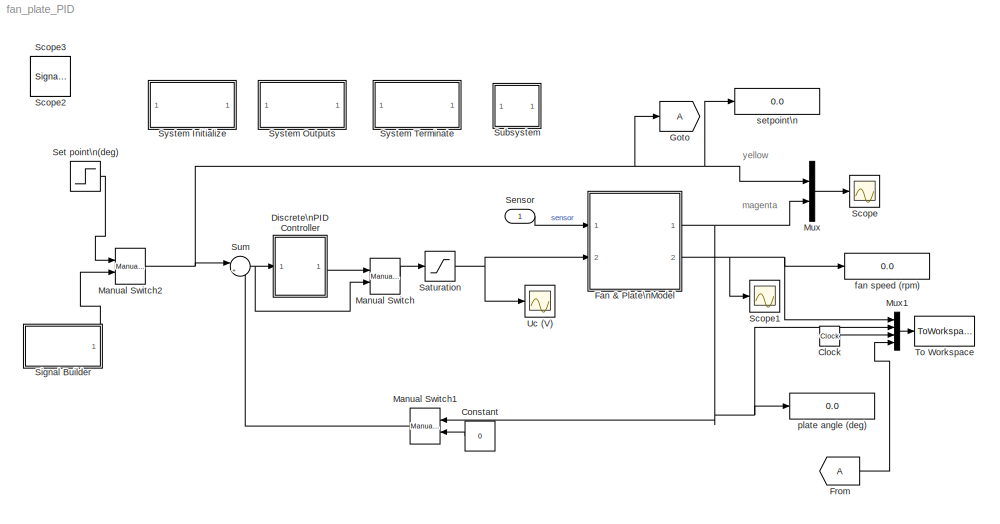
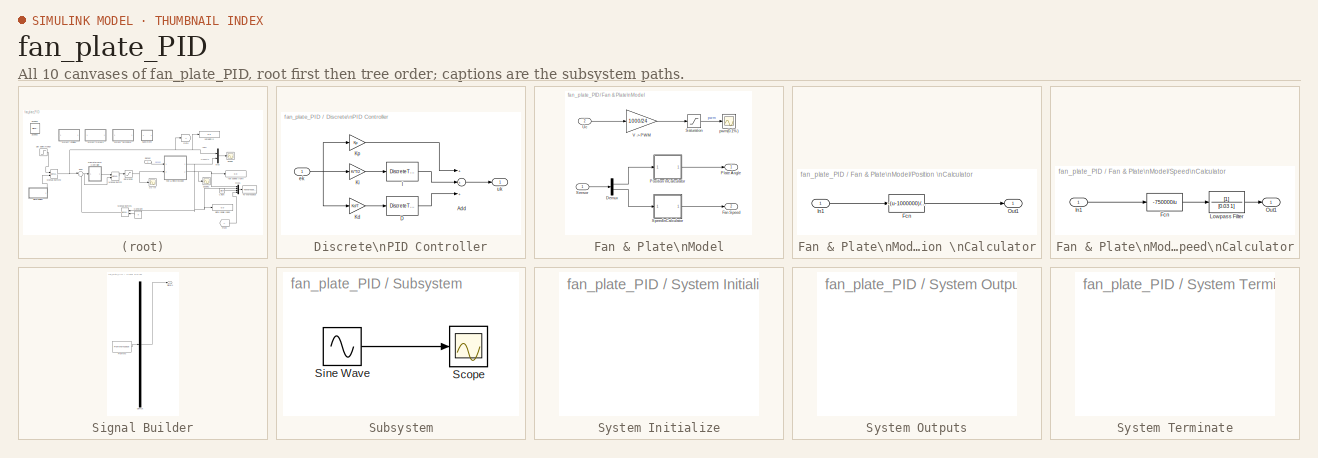
[diagram: thumbnail index - all 10 canvases of the model, root first then tree order]
MODEL fan_plate_PID
KIND model
BLOCK [Clock] Clock
  Decimation = 10
  SID = 2
BLOCK [Constant] Constant
  OutDataType = sfix(16)
  OutScaling = 2^0
  SID = 3
  Value = 0
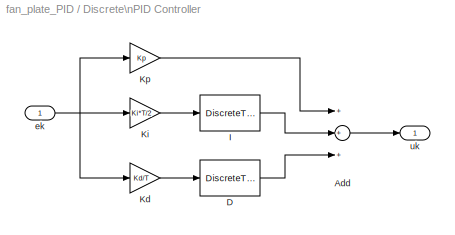
BLOCK [SubSystem] Discrete\nPID Controller
  FunctionWithSeparateData = off
  MaskCallbackString = |||
  MaskEnableString = on,on,on,on
  MaskHideContents = off
  MaskIconFrame = on
  MaskIconOpaque = on
  MaskIconRotate = none
  MaskIconUnits = autoscale
  MaskPortRotate = default
  MaskPromptString = Kp|Ki|Kd|T
  MaskStyleString = edit,edit,edit,edit
  MaskToolTipString = on,on,on,on
  MaskTunableValueString = on,on,on,on
  MaskValueString = 0.9|2.57|0.078|0.001
  MaskVariables = Kp=@1;Ki=@2;Kd=@3;T=@4;
  MaskVisibilityString = on,on,on,on
  MinAlgLoopOccurrences = off
  Opaque = off
  Ports = [1, 1]
  PropExecContextOutsideSubsystem = off
  RTWSystemCode = Auto
  RequestExecContextInheritance = off
  SID = 4
BLOCK [Sum] Discrete\nPID Controller/Add
  InputSameDT = off
  Inputs = +++
  OutDataType = sfix(16)
  OutDataTypeMode = Inherit via internal rule
  OutDataTypeStr = Inherit: Inherit via internal rule
  OutScaling = 2^-10
  Ports = [3, 1]
  SID = 6
  SaturateOnIntegerOverflow = off
BLOCK [DiscreteTransferFcn] Discrete\nPID Controller/D
  Denominator = [1 0]
  Numerator = [1 -1]
  Ports = [1, 1]
  SID = 7
  SampleTime = T
BLOCK [DiscreteTransferFcn] Discrete\nPID Controller/I
  Denominator = [1 -1]
  Numerator = [1 1]
  Ports = [1, 1]
  SID = 8
  SampleTime = T
BLOCK [Gain] Discrete\nPID Controller/Kd
  Gain = Kd/T
  OutDataType = sfix(16)
  OutDataTypeMode = Inherit via internal rule
  OutDataTypeStr = Inherit: Inherit via internal rule
  OutScaling = 2^0
  ParamDataTypeStr = Inherit: Inherit via internal rule
  ParameterDataType = sfix(16)
  ParameterDataTypeMode = Inherit via internal rule
  ParameterScaling = 2^0
  SID = 9
  SaturateOnIntegerOverflow = off
BLOCK [Gain] Discrete\nPID Controller/Ki
  Gain = Ki*T/2
  OutDataType = sfix(16)
  OutDataTypeMode = Inherit via internal rule
  OutDataTypeStr = Inherit: Inherit via internal rule
  OutScaling = 2^0
  ParamDataTypeStr = Inherit: Inherit via internal rule
  ParameterDataType = sfix(16)
  ParameterDataTypeMode = Inherit via internal rule
  ParameterScaling = 2^0
  SID = 10
  SaturateOnIntegerOverflow = off
BLOCK [Gain] Discrete\nPID Controller/Kp
  Gain = Kp
  OutDataType = sfix(16)
  OutDataTypeMode = Inherit via internal rule
  OutDataTypeStr = Inherit: Inherit via internal rule
  OutScaling = 2^0
  ParamDataTypeStr = Inherit: Inherit via internal rule
  ParameterDataType = sfix(16)
  ParameterDataTypeMode = Inherit via internal rule
  ParameterScaling = 2^0
  SID = 11
  SaturateOnIntegerOverflow = off
BLOCK [Inport] Discrete\nPID Controller/ek
  IconDisplay = Port number
  OutDataType = sfix(16)
  OutScaling = 2^0
  SID = 5
BLOCK [Outport] Discrete\nPID Controller/uk
  IconDisplay = Port number
  OutDataType = sfix(16)
  OutScaling = 2^0
  SID = 12
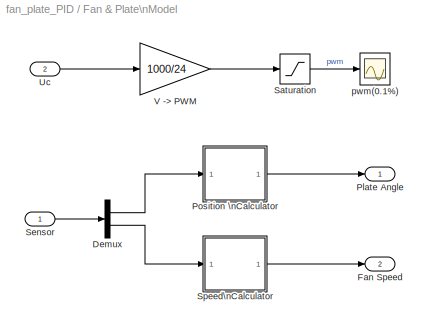
BLOCK [SubSystem] Fan & Plate\nModel
  FunctionWithSeparateData = off
  MaskHideContents = off
  MinAlgLoopOccurrences = off
  Opaque = off
  Ports = [2, 2]
  PropExecContextOutsideSubsystem = off
  RTWSystemCode = Auto
  RequestExecContextInheritance = off
  SID = 13
BLOCK [Demux] Fan & Plate\nModel/Demux
  DisplayOption = bar
  Outputs = 2
  Ports = [1, 2]
  SID = 16
BLOCK [Outport] Fan & Plate\nModel/Fan Speed
  IconDisplay = Port number
  OutDataType = sfix(16)
  OutScaling = 2^0
  Port = 2
  SID = 30
BLOCK [Outport] Fan & Plate\nModel/Plate Angle
  IconDisplay = Port number
  OutDataType = sfix(16)
  OutScaling = 2^0
  SID = 29
BLOCK [SubSystem] Fan & Plate\nModel/Position \nCalculator
  FunctionWithSeparateData = off
  MaskHideContents = off
  MinAlgLoopOccurrences = off
  Opaque = off
  Ports = [1, 1]
  PropExecContextOutsideSubsystem = off
  RTWSystemCode = Auto
  RequestExecContextInheritance = off
  SID = 17
BLOCK [Fcn] Fan & Plate\nModel/Position \nCalculator/Fcn
  Expr = -(u-1000000)/10000*360
  SID = 19
BLOCK [Inport] Fan & Plate\nModel/Position \nCalculator/In1
  IconDisplay = Port number
  OutDataType = sfix(16)
  OutScaling = 2^0
  SID = 18
BLOCK [Outport] Fan & Plate\nModel/Position \nCalculator/Out1
  IconDisplay = Port number
  OutDataType = sfix(16)
  OutScaling = 2^0
  SID = 20
BLOCK [Saturate] Fan & Plate\nModel/Saturation
  LowerLimit = 0
  SID = 21
  UpperLimit = 800
BLOCK [Inport] Fan & Plate\nModel/Sensor
  IconDisplay = Port number
  OutDataType = sfix(16)
  OutScaling = 2^0
  PortDimensions = 2
  SID = 14
BLOCK [SubSystem] Fan & Plate\nModel/Speed\nCalculator
  FunctionWithSeparateData = off
  MaskHideContents = off
  MinAlgLoopOccurrences = off
  Opaque = off
  Ports = [1, 1]
  PropExecContextOutsideSubsystem = off
  RTWSystemCode = Auto
  RequestExecContextInheritance = off
  SID = 22
BLOCK [Fcn] Fan & Plate\nModel/Speed\nCalculator/Fcn
  Expr = -750000/u
  SID = 24
BLOCK [Inport] Fan & Plate\nModel/Speed\nCalculator/In1
  IconDisplay = Port number
  OutDataType = sfix(16)
  OutScaling = 2^0
  SID = 23
BLOCK [TransferFcn] Fan & Plate\nModel/Speed\nCalculator/Lowpass Filter
  Denominator = [0.03 1]
  SID = 25
BLOCK [Outport] Fan & Plate\nModel/Speed\nCalculator/Out1
  IconDisplay = Port number
  OutDataType = sfix(16)
  OutScaling = 2^0
  SID = 26
BLOCK [Inport] Fan & Plate\nModel/Uc
  IconDisplay = Port number
  OutDataType = sfix(16)
  OutScaling = 2^0
  Port = 2
  PortDimensions = 1
  SID = 15
BLOCK [Gain] Fan & Plate\nModel/V -> PWM
  Gain = 1000/24
  OutDataType = sfix(16)
  OutDataTypeMode = Inherit via internal rule
  OutDataTypeStr = Inherit: Inherit via internal rule
  OutScaling = 2^0
  ParameterDataType = sfix(16)
  ParameterScaling = 2^0
  SID = 27
  SaturateOnIntegerOverflow = off
BLOCK [Scope] Fan & Plate\nModel/pwm(0.1%)
  DataFormat = Array
  Floating = off
  LimitDataPoints = off
  NumInputPorts = 1
  Ports = [1]
  SID = 28
  SampleTime = 0
  SaveName = ScopeData3
  SaveToWorkspace = on
  YMax = 1100
  YMin = -1100
BLOCK [From] From
  CloseFcn = tagdialog Close
  GotoTag = A
  SID = 31
BLOCK [Goto] Goto
  GotoTag = A
  SID = 32
  TagVisibility = local
BLOCK [Reference] Manual Switch  REF=simulink/Signal\nRouting/Manual Switch
  FunctionWithSeparateData = off
  Ports = [2, 1]
  RTWMemSecDataConstants = Inherit from model
  RTWMemSecDataInternal = Inherit from model
  RTWMemSecDataParameters = Inherit from model
  RTWMemSecFuncExecute = Inherit from model
  RTWMemSecFuncInitTerm = Inherit from model
  SID = 33
  ShowPortLabels = FromPortIcon
  SourceBlock = simulink/Signal\nRouting/Manual Switch
  SourceType = Manual Switch
  SystemSampleTime = -1
  action = 0
  sw = 1
  varsize = off
BLOCK [Reference] Manual Switch1  REF=simulink/Signal\nRouting/Manual Switch
  FunctionWithSeparateData = off
  Ports = [2, 1]
  RTWMemSecDataConstants = Inherit from model
  RTWMemSecDataInternal = Inherit from model
  RTWMemSecDataParameters = Inherit from model
  RTWMemSecFuncExecute = Inherit from model
  RTWMemSecFuncInitTerm = Inherit from model
  SID = 34
  ShowPortLabels = FromPortIcon
  SourceBlock = simulink/Signal\nRouting/Manual Switch
  SourceType = Manual Switch
  SystemSampleTime = -1
  action = 0
  sw = 1
  varsize = off
BLOCK [Reference] Manual Switch2  REF=simulink/Signal\nRouting/Manual Switch
  FunctionWithSeparateData = off
  Ports = [2, 1]
  RTWMemSecDataConstants = Inherit from model
  RTWMemSecDataInternal = Inherit from model
  RTWMemSecDataParameters = Inherit from model
  RTWMemSecFuncExecute = Inherit from model
  RTWMemSecFuncInitTerm = Inherit from model
  SID = 35
  ShowPortLabels = FromPortIcon
  SourceBlock = simulink/Signal\nRouting/Manual Switch
  SourceType = Manual Switch
  SystemSampleTime = -1
  action = 0
  sw = 1
  varsize = off
BLOCK [Mux] Mux
  DisplayOption = bar
  Inputs = 2
  Ports = [2, 1]
  SID = 36
BLOCK [Mux] Mux1
  DisplayOption = bar
  Ports = [4, 1]
  SID = 37
BLOCK [Saturate] Saturation
  LowerLimit = 0
  SID = 38
  UpperLimit = 19.2
BLOCK [Scope] Scope
  DataFormat = Array
  Floating = off
  LimitDataPoints = off
  NumInputPorts = 1
  Ports = [1]
  SID = 39
  SampleTime = 0
  SaveToWorkspace = on
  YMax = 15
  YMin = 0
  ZoomMode = xonly
BLOCK [Scope] Scope1
  DataFormat = Array
  Floating = off
  LimitDataPoints = off
  NumInputPorts = 1
  Ports = [1]
  SID = 40
  SampleTime = 0
  SaveName = ScopeData1
  SaveToWorkspace = on
  YMax = 700
  YMin = 0
  ZoomMode = yonly
BLOCK [SignalViewerScope] Scope2
  DataFormat = Array
  IOType = viewer
  MaxDataPoints = 7500
  NumInputPorts = 1
  Ports = []
  RefreshTime = 0.035000
  SID = 55
  ShowDataMarkers = off
  ShowLegends = off
  YMax = 55
  YMin = -20
BLOCK [SignalViewerScope] Scope3
  DataFormat = Array
  IOType = viewer
  MaxDataPoints = 7500
  NumInputPorts = 1
  Ports = []
  RefreshTime = 0.035000
  SID = 56
  SaveName = ScopeData1
  ShowDataMarkers = off
  ShowLegends = off
  YMax = 17500
  YMin = -2500
BLOCK [Inport] Sensor
  IconDisplay = Port number
  OutDataType = sfix(16)
  OutScaling = 2^0
  PortDimensions = 2
  SID = 1
BLOCK [Step] Set point\n(deg)
  After = 10
  SID = 41
  Time = 0
BLOCK [SubSystem] Signal Builder
  ClipboardFcn = sigbuilder_block('clipboard');
  CloseFcn = sigbuilder_block('close');
  CopyFcn = sigbuilder_block('copy');
  DeleteFcn = sigbuilder_block('delete');
  FunctionWithSeparateData = off
  LoadFcn = sigbuilder_block('load');
  MaskDescription = Sigbuilder GUI
  MaskDisplay = plot(0,0,100,100,[10,10,40,40,10],[80,20,20,80,80],[40,10],[50,50], [40,27,10],[65,72,56],[40,25,25,10],[28,28,43,43]);
  MaskHideContents = on
  MaskIconFrame = on
  MaskIconOpaque = off
  MaskIconRotate = port
  MaskIconUnits = autoscale
  MaskInitialization = if ~strcmp(get_param(bdroot(gcbh),'SimulationStatus'),'stopped') tuvar = sigbuilder_block('maskInit'); end
  MaskPortRotate = default
  MaskType = Sigbuilder block
  MinAlgLoopOccurrences = off
  ModelCloseFcn = sigbuilder_block('modelClose');
  NameChangeFcn = sigbuilder_block('namechange');
  Opaque = off
  OpenFcn = sigbuilder_block('open',[-3 28.5 768 495 ]);
  Ports = [0, 1]
  PreSaveFcn = sigbuilder_block('preSave');
  PropExecContextOutsideSubsystem = off
  RTWSystemCode = Auto
  RequestExecContextInheritance = off
  SID = 42
  StartFcn = sigbuilder_block('start');
  StopFcn = sigbuilder_block('stop');
  Tag = STV Subsys
BLOCK [Demux] Signal Builder/Demux
  Outputs = 1
  Ports = [1, 1]
  SID = 43
  Tag = STV Demux
BLOCK [FromWorkspace] Signal Builder/FromWs
  SID = 44
  SampleTime = 0
  SigBuilderData = DataTag0
  Tag = STV FromWs
  VariableName = tuvar
  VnvData = DataTag1
  ZeroCross = on
BLOCK [Outport] Signal Builder/Signal 1
  IconDisplay = Port number
  OutDataType = sfix(16)
  OutScaling = 2^0
  SID = 45
  Tag = STV Outport
BLOCK [SubSystem] Subsystem
  FunctionWithSeparateData = off
  MaskHideContents = off
  MinAlgLoopOccurrences = off
  Opaque = off
  Ports = []
  PropExecContextOutsideSubsystem = off
  RTWSystemCode = Auto
  RequestExecContextInheritance = off
  SID = 57
  TreatAsAtomicUnit = on
BLOCK [Scope] Subsystem/Scope
  DataFormat = StructureWithTime
  Floating = off
  NumInputPorts = 1
  Ports = [1]
  SID = 58
  SampleTime = 0
  SaveName = ScopeData1
BLOCK [Sin] Subsystem/Sine Wave
  Amplitude = 1
  Bias = 0
  Frequency = 1
  Offset = 0
  Phase = 0
  Ports = [0, 1]
  SID = 59
  SampleTime = 0
  Samples = 10
BLOCK [Sum] Sum
  IconShape = round
  InputSameDT = off
  Inputs = |+-
  OutDataType = sfix(16)
  OutDataTypeMode = Inherit via internal rule
  OutDataTypeStr = Inherit: Inherit via internal rule
  OutScaling = 2^0
  Ports = [2, 1]
  SID = 46
  SaturateOnIntegerOverflow = off
BLOCK [SubSystem] System Initialize
  CopyFcn = cccopyfcn(gcb)
  FunctionWithSeparateData = off
  MaskDescription = Add code to a systems Initialize function
  MaskDisplay = disp('System\\nInitialize');
  MaskEnableString = off
  MaskHelp = This block contains text fields to insert custom user code sections at the declaration, execution and exit sections of the systems initialize function.  By placing this block inside a subsytem, the custom user code will appear in that subsystems function.
  MaskHideContents = off
  MaskIconFrame = on
  MaskIconOpaque = on
  MaskIconRotate = none
  MaskIconUnits = autoscale
  MaskPortRotate = default
  MaskPromptString = Mask Parameter 1:
  MaskStyleString = edit
  MaskToolTipString = on
  MaskTunableValueString = on
  MaskType = System Initialize
  MaskValueString = 0
  MaskVariables = ShowInLibBrowser=@1;
  MaskVisibilityString = off
  MinAlgLoopOccurrences = off
  Opaque = off
  OpenFcn = ccopenfcn('System Initialize Function')
  Ports = []
  PropExecContextOutsideSubsystem = off
  RTWSystemCode = Auto
  RequestExecContextInheritance = off
  SID = 47
BLOCK [SubSystem] System Outputs
  CopyFcn = cccopyfcn(gcb)
  FunctionWithSeparateData = off
  MaskDescription = Add code to a systems Outputs function
  MaskDisplay = disp('System\\nOutputs');
  MaskEnableString = off
  MaskHelp = This block contains text fields to insert custom user code sections at the declaration, execution and exit sections of the systems outputs function.  By placing this block inside a subsytem, the custom user code will appear in that subsystems function.
  MaskHideContents = off
  MaskIconFrame = on
  MaskIconOpaque = on
  MaskIconRotate = none
  MaskIconUnits = autoscale
  MaskPortRotate = default
  MaskPromptString = Mask Parameter 1:
  MaskStyleString = edit
  MaskToolTipString = on
  MaskTunableValueString = on
  MaskType = System Outputs
  MaskValueString = 0
  MaskVariables = ShowInLibBrowser=@1;
  MaskVisibilityString = off
  MinAlgLoopOccurrences = off
  Opaque = off
  OpenFcn = ccopenfcn('System Outputs Function')
  Ports = []
  PropExecContextOutsideSubsystem = off
  RTWSystemCode = Auto
  RequestExecContextInheritance = off
  SID = 48
BLOCK [SubSystem] System Terminate
  CopyFcn = cccopyfcn(gcb)
  FunctionWithSeparateData = off
  MaskDescription = Add code to a systems Terminate function
  MaskDisplay = disp('System\\nTerminate');
  MaskEnableString = off
  MaskHelp = This block contains text fields to insert custom user code sections at the declaration, execution and exit sections of the systems terminate function.  By placing this block inside a subsytem, the custom user code will appear in that subsystems function.
  MaskHideContents = off
  MaskIconFrame = on
  MaskIconOpaque = on
  MaskIconRotate = none
  MaskIconUnits = autoscale
  MaskPortRotate = default
  MaskPromptString = Mask Parameter 1:
  MaskStyleString = edit
  MaskToolTipString = on
  MaskTunableValueString = on
  MaskType = System Terminate
  MaskValueString = 0
  MaskVariables = ShowInLibBrowser=@1;
  MaskVisibilityString = off
  MinAlgLoopOccurrences = off
  Opaque = off
  OpenFcn = ccopenfcn('System Terminate Function')
  Ports = []
  PropExecContextOutsideSubsystem = off
  RTWSystemCode = Auto
  RequestExecContextInheritance = off
  SID = 49
BLOCK [ToWorkspace] To Workspace
  MaxDataPoints = inf
  Ports = [1]
  SID = 50
  SampleTime = -1
  SaveFormat = Array
  VariableName = pos_out
BLOCK [Scope] Uc (V)
  DataFormat = Array
  Floating = off
  LimitDataPoints = off
  NumInputPorts = 1
  Ports = [1]
  SID = 51
  SampleTime = 0
  SaveName = ScopeData2
  SaveToWorkspace = on
  YMax = 700
  YMin = 0
BLOCK [Display] fan speed (rpm)
  Decimation = 1
  Lockdown = off
  Ports = [1]
  SID = 52
BLOCK [Display] plate angle (deg)
  Decimation = 1
  Lockdown = off
  Ports = [1]
  SID = 53
BLOCK [Display] setpoint\n
  Decimation = 1
  Lockdown = off
  Ports = [1]
  SID = 54
ANNOTATION (root): magenta
ANNOTATION (root): yellow
LINE Clock:1 -> Mux1:3
LINE Constant:1 -> Manual Switch1:2
LINE Discrete\nPID Controller/Add:1 -> Discrete\nPID Controller/uk:1
LINE Discrete\nPID Controller/D:1 -> Discrete\nPID Controller/Add:3
LINE Discrete\nPID Controller/I:1 -> Discrete\nPID Controller/Add:2
LINE Discrete\nPID Controller/Kd:1 -> Discrete\nPID Controller/D:1
LINE Discrete\nPID Controller/Ki:1 -> Discrete\nPID Controller/I:1
LINE Discrete\nPID Controller/Kp:1 -> Discrete\nPID Controller/Add:1
NET Discrete\nPID Controller/ek:1 -> Discrete\nPID Controller/Kd:1, Discrete\nPID Controller/Ki:1, Discrete\nPID Controller/Kp:1
LINE Discrete\nPID Controller:1 -> Manual Switch:1
LINE Fan & Plate\nModel/Demux:1 -> Fan & Plate\nModel/Position \nCalculator:1
LINE Fan & Plate\nModel/Demux:2 -> Fan & Plate\nModel/Speed\nCalculator:1
LINE Fan & Plate\nModel/Position \nCalculator/Fcn:1 -> Fan & Plate\nModel/Position \nCalculator/Out1:1
LINE Fan & Plate\nModel/Position \nCalculator/In1:1 -> Fan & Plate\nModel/Position \nCalculator/Fcn:1
LINE Fan & Plate\nModel/Position \nCalculator:1 -> Fan & Plate\nModel/Plate Angle:1
LINE Fan & Plate\nModel/Saturation:1 -> Fan & Plate\nModel/pwm(0.1%):1
LINE Fan & Plate\nModel/Sensor:1 -> Fan & Plate\nModel/Demux:1
LINE Fan & Plate\nModel/Speed\nCalculator/Fcn:1 -> Fan & Plate\nModel/Speed\nCalculator/Lowpass Filter:1
LINE Fan & Plate\nModel/Speed\nCalculator/In1:1 -> Fan & Plate\nModel/Speed\nCalculator/Fcn:1
LINE Fan & Plate\nModel/Speed\nCalculator/Lowpass Filter:1 -> Fan & Plate\nModel/Speed\nCalculator/Out1:1
LINE Fan & Plate\nModel/Speed\nCalculator:1 -> Fan & Plate\nModel/Fan Speed:1
LINE Fan & Plate\nModel/Uc:1 -> Fan & Plate\nModel/V -> PWM:1
LINE Fan & Plate\nModel/V -> PWM:1 -> Fan & Plate\nModel/Saturation:1
NET Fan & Plate\nModel:1 -> Manual Switch1:1, Mux1:2, Mux:2, plate angle (deg):1
NET Fan & Plate\nModel:2 -> Mux1:1, Scope1:1, fan speed (rpm):1
LINE From:1 -> Mux1:4
LINE Manual Switch1:1 -> Sum:2
NET Manual Switch2:1 -> Goto:1, Mux:1, Sum:1, setpoint\n:1
LINE Manual Switch:1 -> Saturation:1
LINE Mux1:1 -> To Workspace:1
LINE Mux:1 -> Scope:1
NET Saturation:1 -> Fan & Plate\nModel:2, Uc (V):1
LINE Sensor:1 -> Fan & Plate\nModel:1
LINE Set point\n(deg):1 -> Manual Switch2:1
LINE Signal Builder/Demux:1 -> Signal Builder/Signal 1:1
LINE Signal Builder/FromWs:1 -> Signal Builder/Demux:1
LINE Signal Builder:1 -> Manual Switch2:2
LINE Subsystem/Sine Wave:1 -> Subsystem/Scope:1
NET Sum:1 -> Discrete\nPID Controller:1, Manual Switch:2
note: NET lines group one-source signal fan-out (src -> all destinations, sorted); 1:1 wires keep LINE
